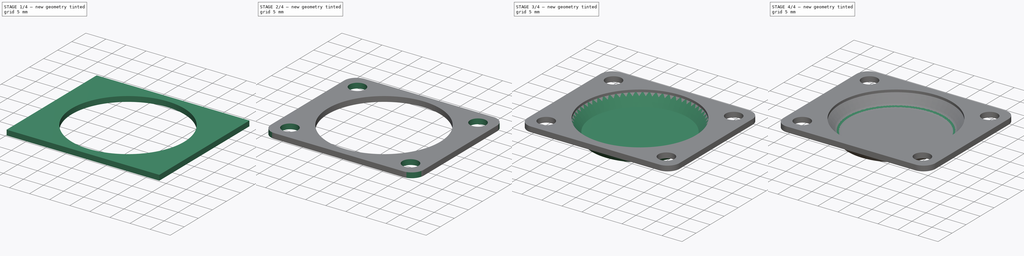
[diagram: build sequence overview — one tinted view per stage of 4, left to right]
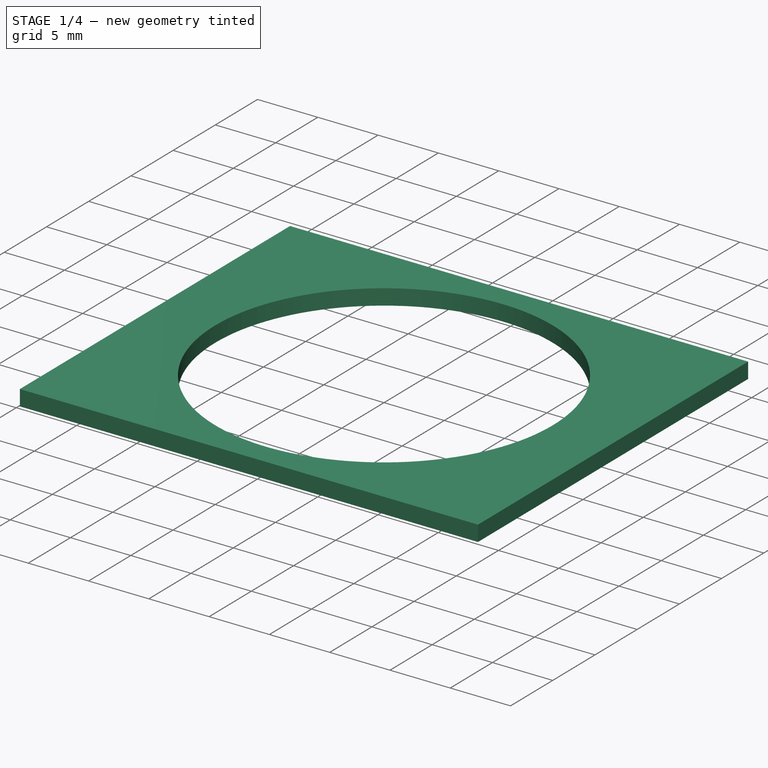
[diagram: stage 1 of 4 — iso view after this stage's code; geometry added in this stage tinted green]
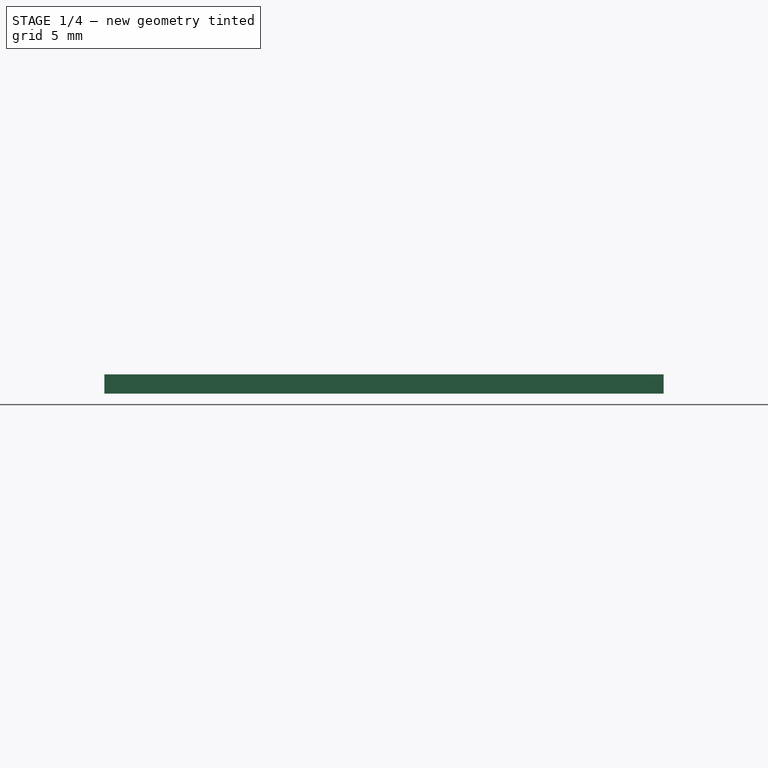
[diagram: stage 1 of 4 — front view after this stage's code; geometry added in this stage tinted green]
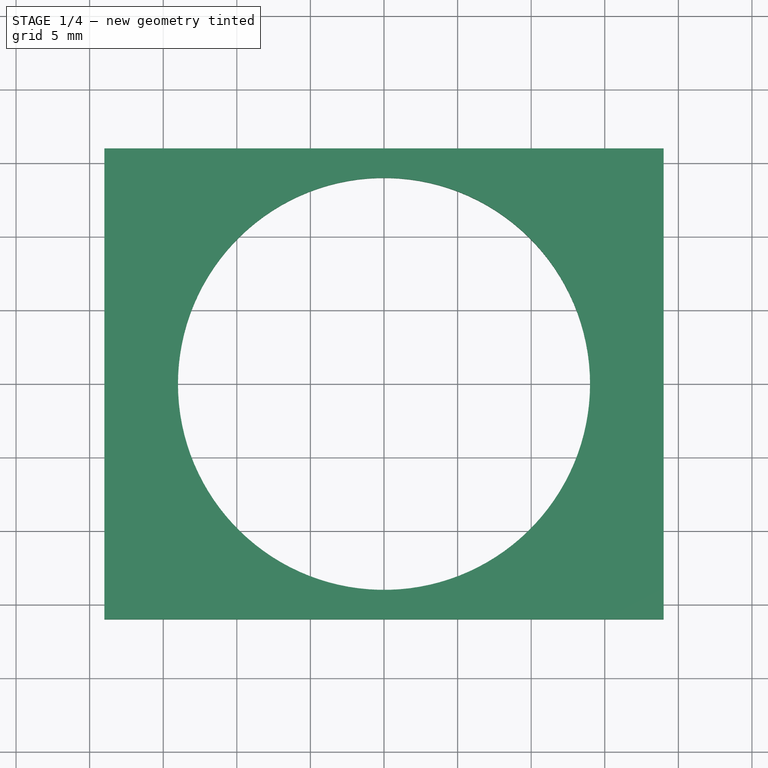
[diagram: stage 1 of 4 — top view after this stage's code; geometry added in this stage tinted green]
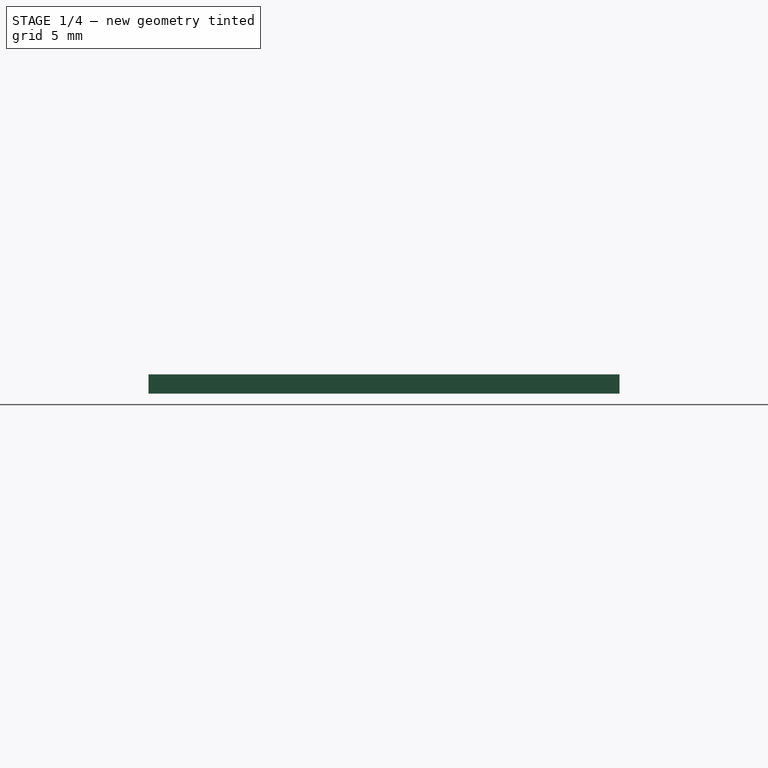
[diagram: stage 1 of 4 — right view after this stage's code; geometry added in this stage tinted green]
FCSTD DOCUMENT  (FreeCAD 0.16R6712 (Git))
Label: freeWheel
License: All rights reserved
LicenseURL: http://en.wikipedia.org/wiki/All_rights_reserved
objects: PartDesign::Fillet×4, Sketcher::SketchObject×3, PartDesign::Pocket×2, PartDesign::Revolution×1, Part::Box×1, Part::Cut×1
note: 15 computed .brp shape members not serialized (recipe doc carries the construction recipe); baked Part::Feature solids carry a one-line shape summary decoded from their .brp

FEATURE [Part::Box] Box  label="Cube"
  Height = 1.3
  Length = 38
  Placement = pos=(-19,-16,3) rot=(0,0,1;0rad)
  Width = 32
FEATURE [Sketcher::SketchObject] Sketch001
  Placement = pos=(-19,-16,4.3) rot=(0,0,1;0rad)
  Support = -> Box [Face6]
  sketch-geometry (1):
    g0: Circle CenterX=19 CenterY=16 CenterZ=0 NormalX=0 NormalY=0 NormalZ=1 Radius=14
  constraints (3):
    c: DistanceX(g-1,g0) = 19
    c: DistanceY(g-1,g0) = 16
    c: Radius(g0) = 14
FEATURE [PartDesign::Pocket] Pocket
  Length = 5
  Placement = pos=(-19,-16,3) rot=(0,0,1;0rad)
  Sketch = -> Sketch001
  Type = 1
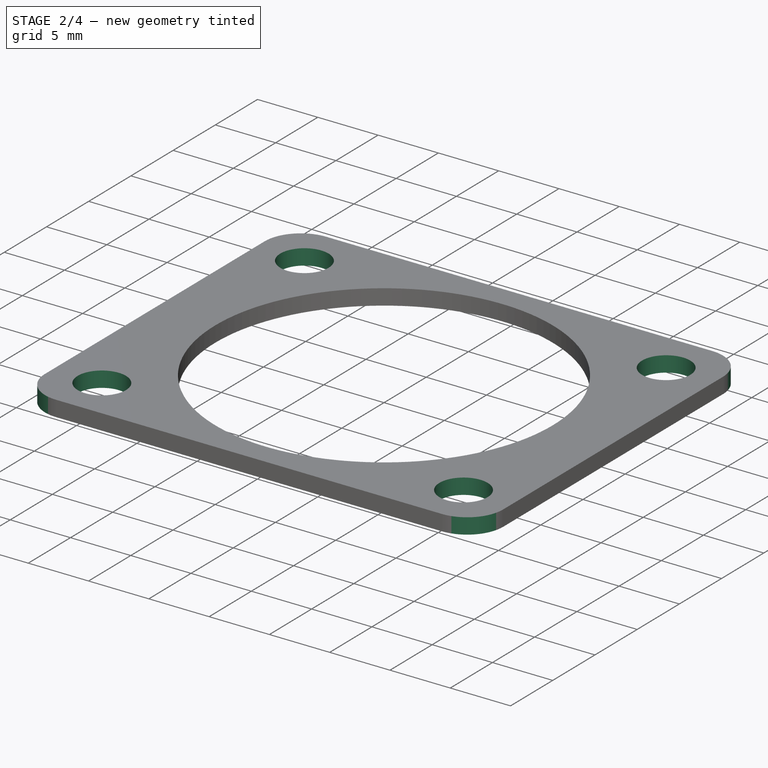
[diagram: stage 2 of 4 — iso view after this stage's code; geometry added in this stage tinted green]
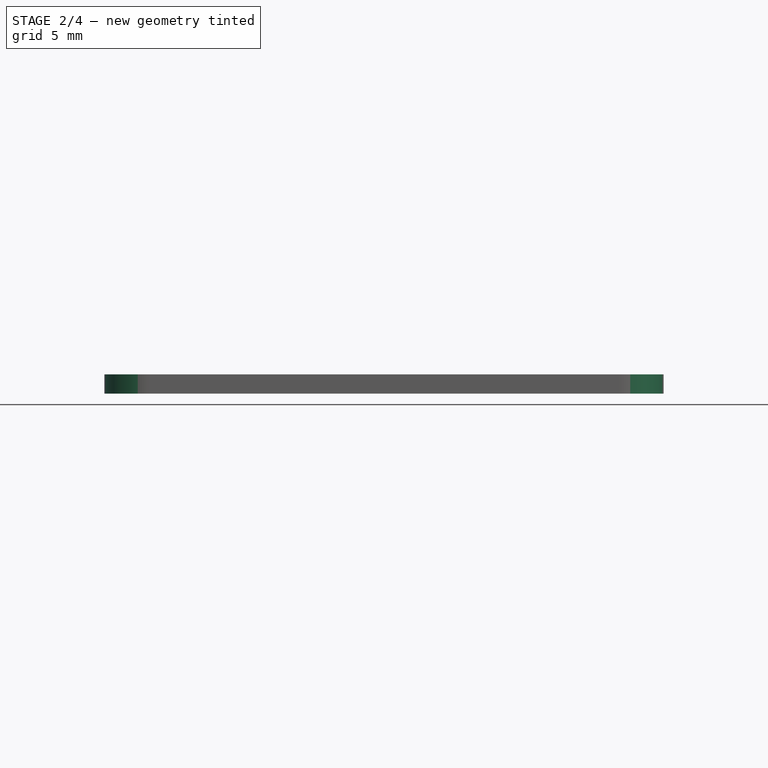
[diagram: stage 2 of 4 — front view after this stage's code; geometry added in this stage tinted green]
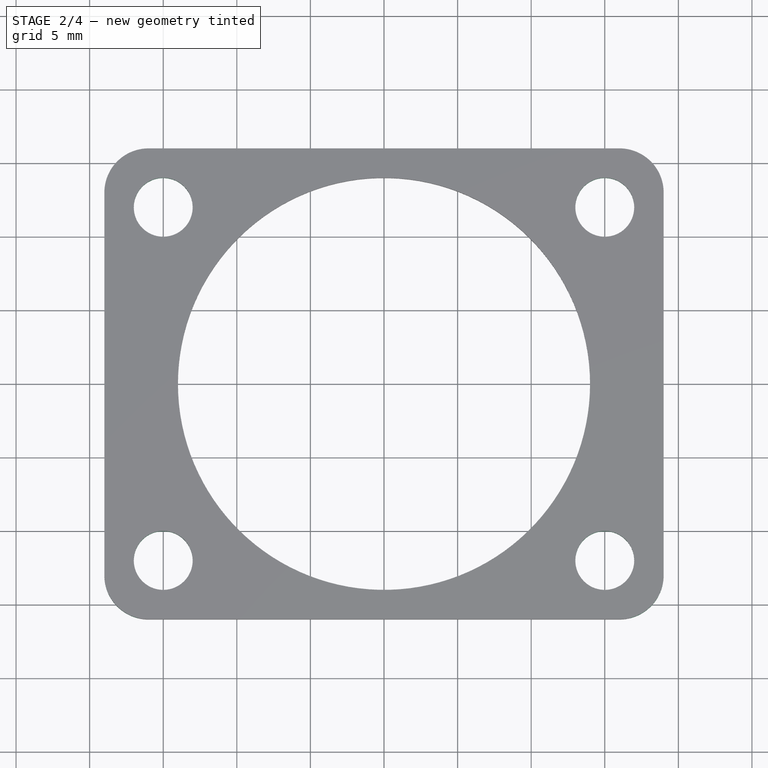
[diagram: stage 2 of 4 — top view after this stage's code; geometry added in this stage tinted green]
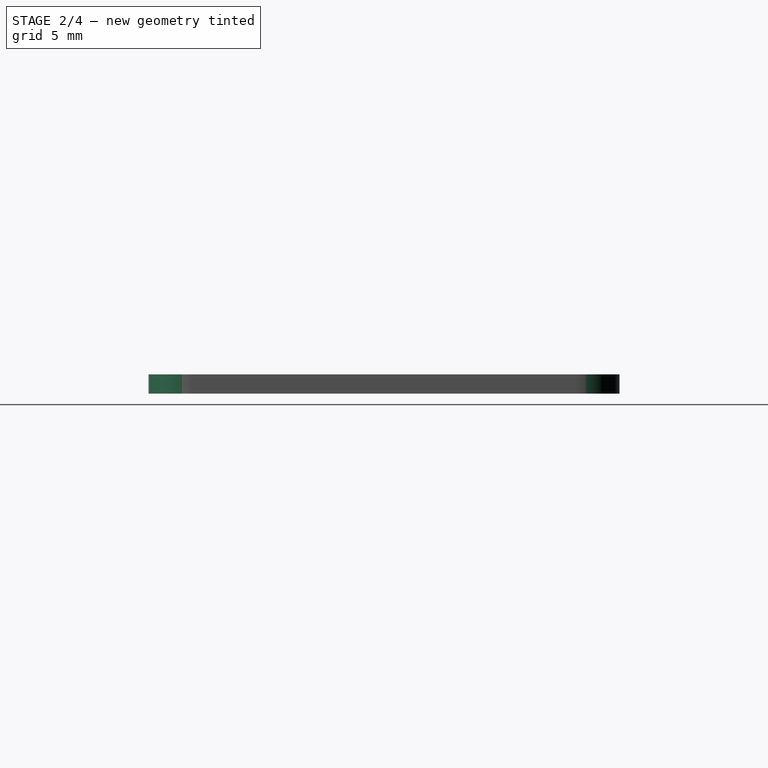
[diagram: stage 2 of 4 — right view after this stage's code; geometry added in this stage tinted green]
FEATURE [PartDesign::Fillet] Fillet003
  Base = -> Pocket [Edge1,Edge6,Edge12,Edge3]
  Placement = pos=(-19,-16,3) rot=(0,0,1;0rad)
  Radius = 3
FEATURE [Sketcher::SketchObject] Sketch002
  Placement = pos=(-19,-16,4.3) rot=(0,0,1;0rad)
  Support = -> Fillet003 [Face2]
  sketch-geometry (4):
    g0: Circle CenterX=4 CenterY=4 CenterZ=0 NormalX=0 NormalY=0 NormalZ=1 Radius=2
    g1: Circle CenterX=34 CenterY=4 CenterZ=0 NormalX=0 NormalY=0 NormalZ=1 Radius=2
    g2: Circle CenterX=34 CenterY=28 CenterZ=0 NormalX=0 NormalY=0 NormalZ=1 Radius=2
    g3: Circle CenterX=4 CenterY=28 CenterZ=0 NormalX=0 NormalY=0 NormalZ=1 Radius=2
  constraints (12):
    c: Radius(g0) = 2
    c: DistanceY(g-1,g0) = 4
    c: DistanceX(g-1,g0) = 4
    c: Equal(g0,g1)
    c: Equal(g1,g2)
    c: Equal(g2,g3)
    c: DistanceX(g0,g1) = 30
    c: DistanceX(g3,g2) = 30
    c: DistanceY(g1,g2) = 24
    c: DistanceY(g0,g3) = 24
    c: DistanceX(g-1,g3) = 4
    c: DistanceY(g-1,g1) = 4
FEATURE [PartDesign::Pocket] Pocket001
  Length = 5
  Placement = pos=(-19,-16,3) rot=(0,0,1;0rad)
  Sketch = -> Sketch002
  Type = 1
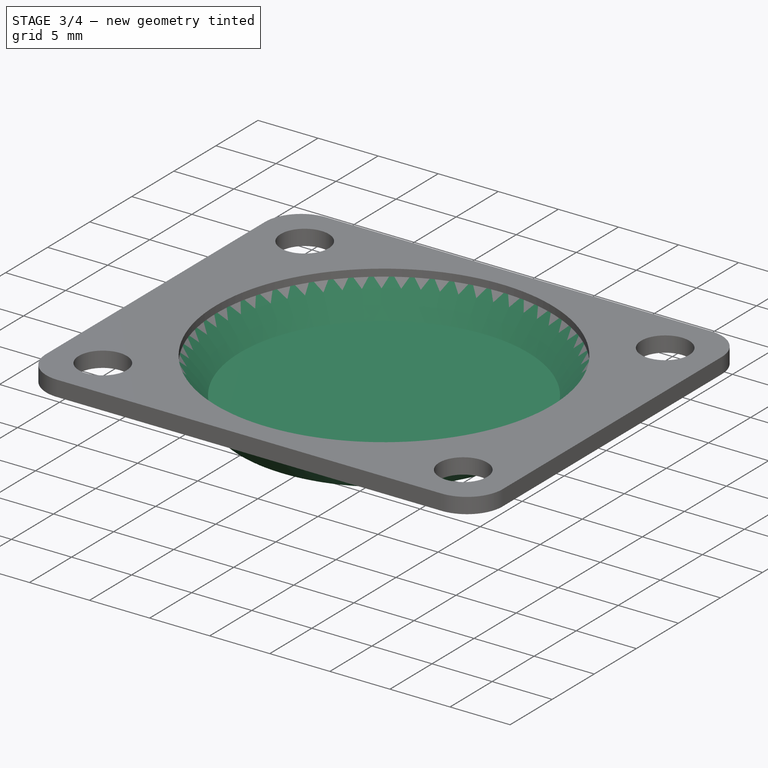
[diagram: stage 3 of 4 — iso view after this stage's code; geometry added in this stage tinted green]
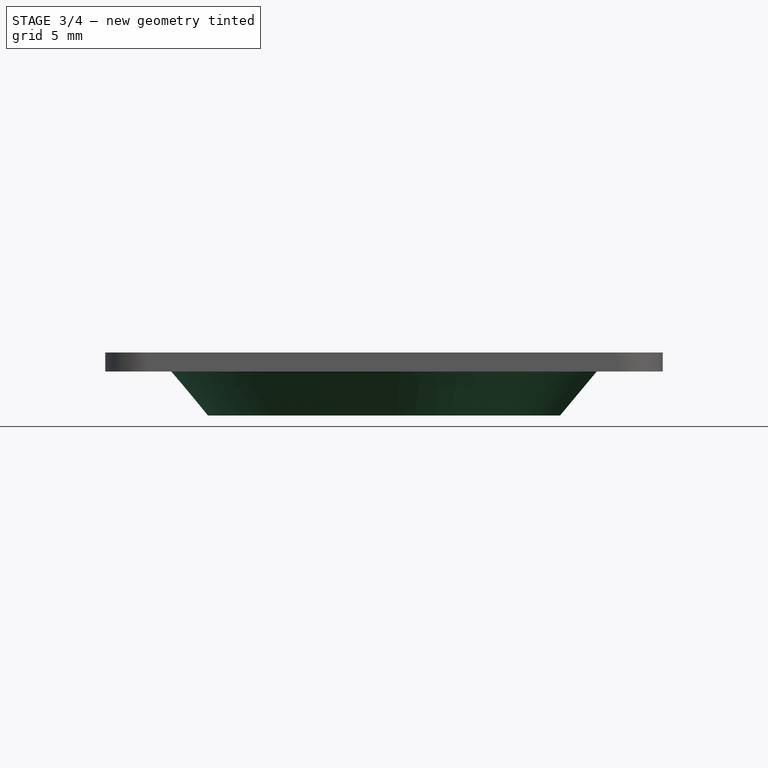
[diagram: stage 3 of 4 — front view after this stage's code; geometry added in this stage tinted green]
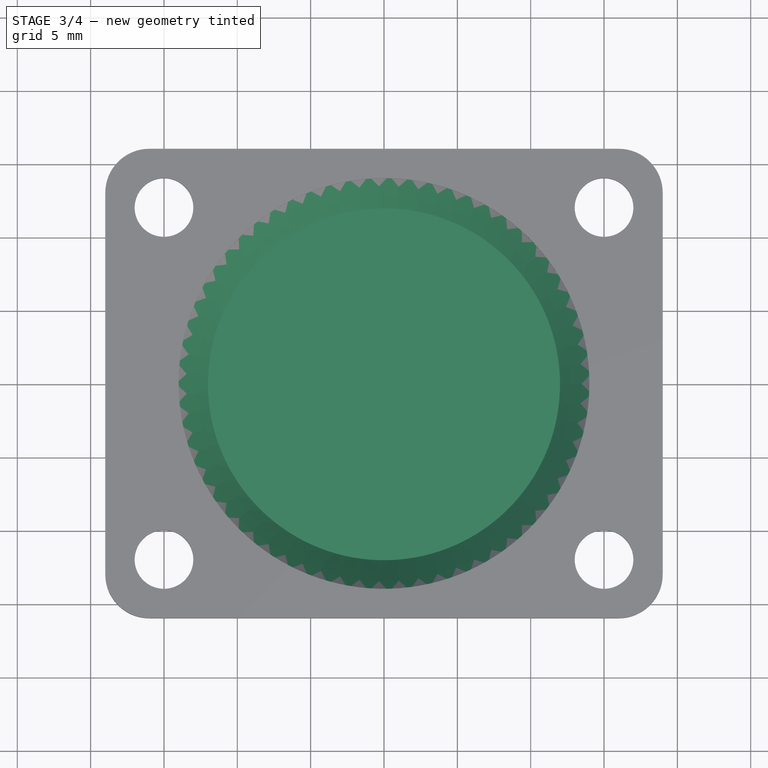
[diagram: stage 3 of 4 — top view after this stage's code; geometry added in this stage tinted green]
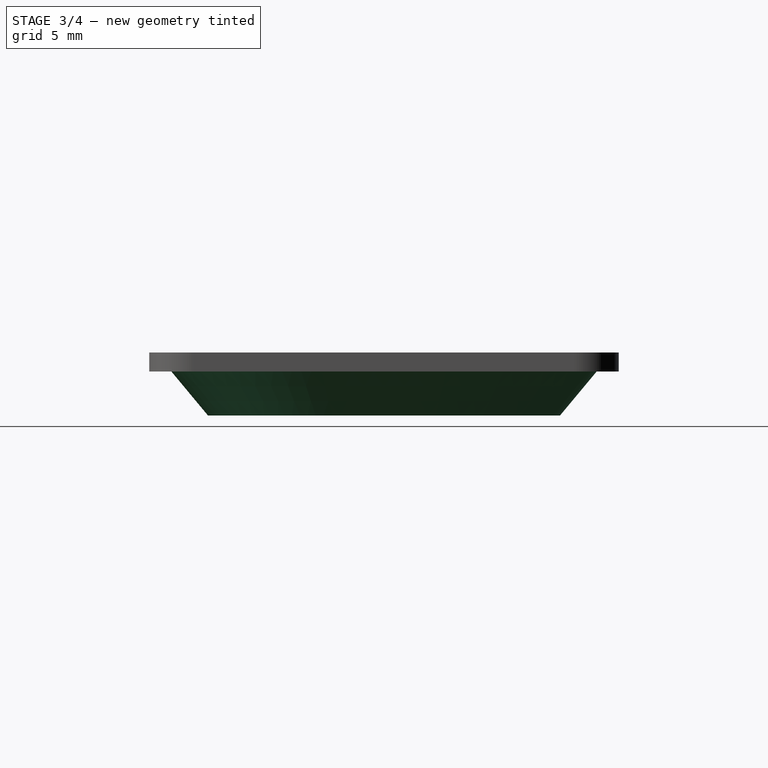
[diagram: stage 3 of 4 — right view after this stage's code; geometry added in this stage tinted green]
FEATURE [Sketcher::SketchObject] Sketch
  Placement = pos=(0,0,0) rot=(-1,0,0;4.71239rad)
  sketch-geometry (8):
    g0: LineSegment StartX=0 StartY=0 StartZ=0 EndX=12 EndY=0 EndZ=0
    g1: LineSegment StartX=12 StartY=0 StartZ=0 EndX=14.5 EndY=3 EndZ=0
    g2: LineSegment StartX=14.5 StartY=3 StartZ=0 EndX=16 EndY=3 EndZ=0
    g3: LineSegment StartX=0 StartY=1.3 StartZ=0 EndX=12 EndY=1.3 EndZ=0
    g4: LineSegment StartX=12 StartY=1.3 StartZ=0 EndX=14.5 EndY=4.3 EndZ=0
    g5: LineSegment StartX=14.5 StartY=4.3 StartZ=0 EndX=16 EndY=4.3 EndZ=0
    g6: LineSegment StartX=16 StartY=4.3 StartZ=0 EndX=16 EndY=3 EndZ=0
    g7: LineSegment StartX=0 StartY=1.3 StartZ=0 EndX=0 EndY=0 EndZ=0
  constraints (25):
    c: Coincident(g0,g-1)
    c: Horizontal(g0)
    c: DistanceX(g0,g0) = 12
    c: Coincident(g1,g0)
    c: Coincident(g2,g1)
    c: Horizontal(g2)
    c: DistanceX(g-1,g2) = 16
    c: DistanceX(g2,g2) = 1.5
    c: DistanceY(g-1,g2) = 3
    c: Horizontal(g3)
    c: Equal(g0,g3) = 12
    c: Coincident(g4,g3)
    c: Coincident(g5,g4)
    c: Horizontal(g5)
    c: Equal(g2,g5) = 1.5
    c: DistanceX(g-1,g3) = 0
    c: DistanceY(g3) = 1.3
    c: DistanceX(g1,g4) = 0
    c: DistanceY(g2,g5) = 1.3
    c: Coincident(g6,g5)
    c: Vertical(g6)
    c: Coincident(g2,g6)
    c: Coincident(g7,g3)
    c: PointOnObject(g7,g-2)
    c: Coincident(g-1,g7)
FEATURE [PartDesign::Revolution] Revolution
  Angle = 360
  Axis = (0,0,1)
  Base = (0,0,0)
  Placement = pos=(0,0,0) rot=(-1,0,0;4.71239rad)
  ReferenceAxis = -> Sketch [V_Axis]
  Reversed = true
  Sketch = -> Sketch
FEATURE [PartDesign::Fillet] Fillet
  Base = -> Revolution [Edge7]
  Placement = pos=(0,0,0) rot=(-1,0,0;4.71239rad)
  Radius = 1
FEATURE [Part::Cut] Cut
  Base = -> Revolution
  Tool = -> Box
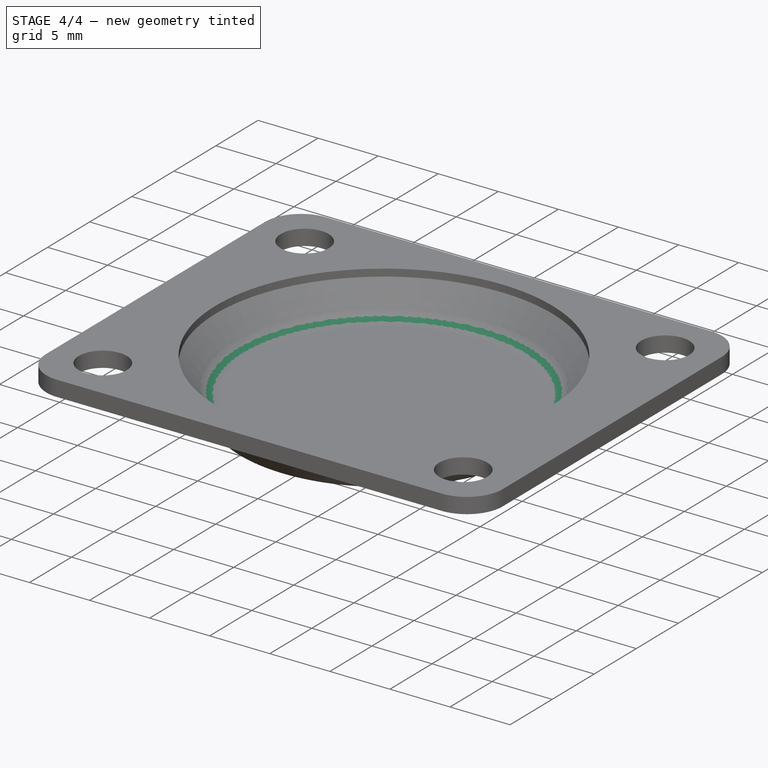
[diagram: stage 4 of 4 — iso view after this stage's code; geometry added in this stage tinted green]
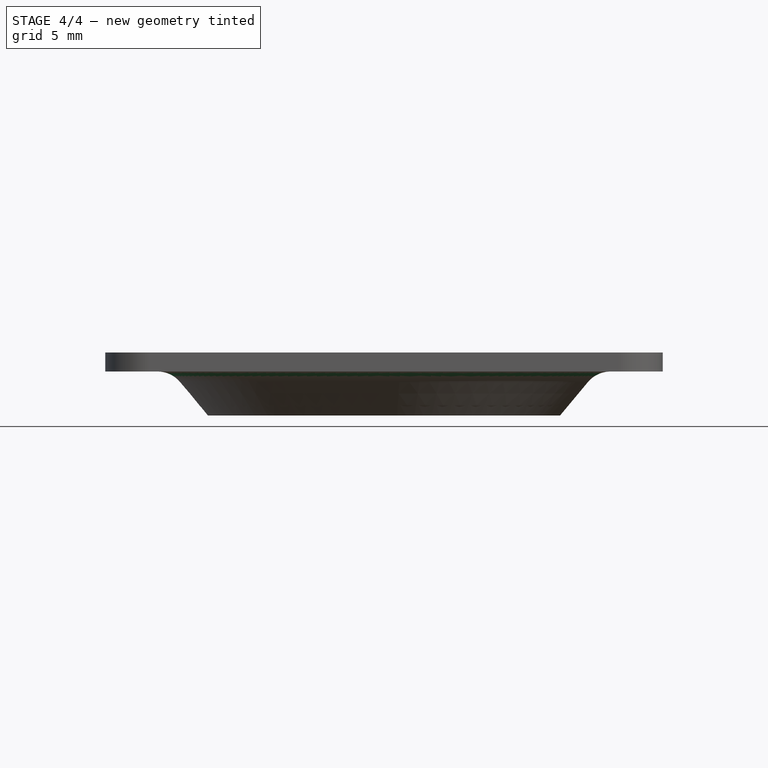
[diagram: stage 4 of 4 — front view after this stage's code; geometry added in this stage tinted green]
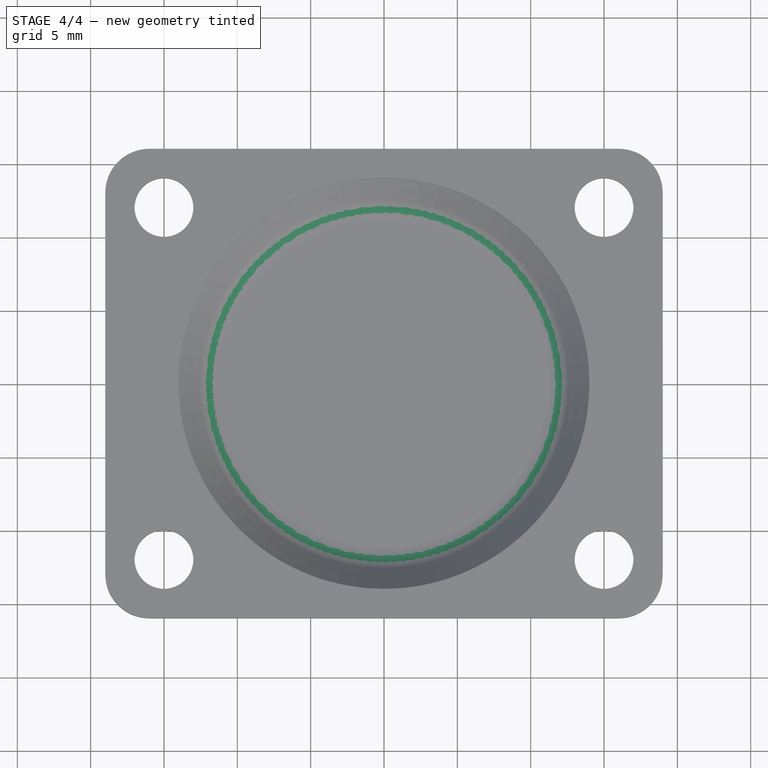
[diagram: stage 4 of 4 — top view after this stage's code; geometry added in this stage tinted green]
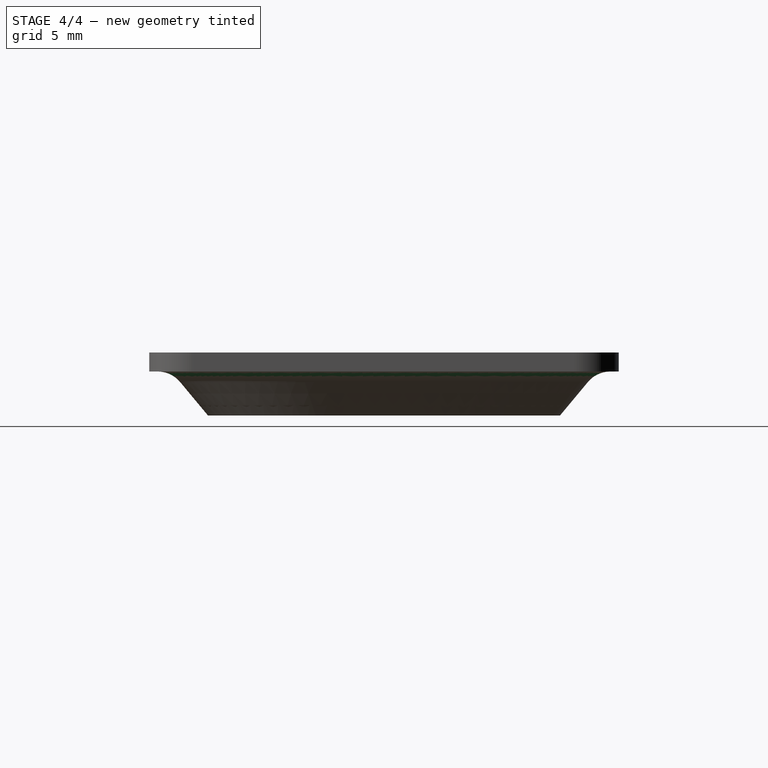
[diagram: stage 4 of 4 — right view after this stage's code; geometry added in this stage tinted green]
FEATURE [PartDesign::Fillet] Fillet001
  Base = -> Fillet [Edge8]
  Placement = pos=(0,0,0) rot=(-1,0,0;4.71239rad)
  Radius = 2
FEATURE [PartDesign::Fillet] Fillet002
  Base = -> Fillet001 [Edge12,Edge11]
  Placement = pos=(0,0,0) rot=(-1,0,0;4.71239rad)
  Radius = 2
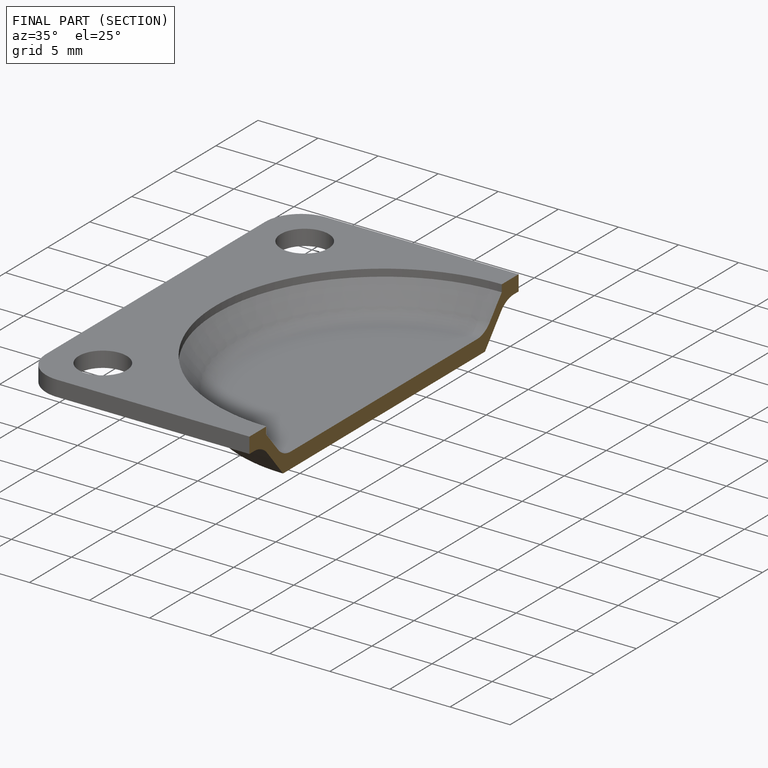
[diagram: finished part — half-section view (interior)]
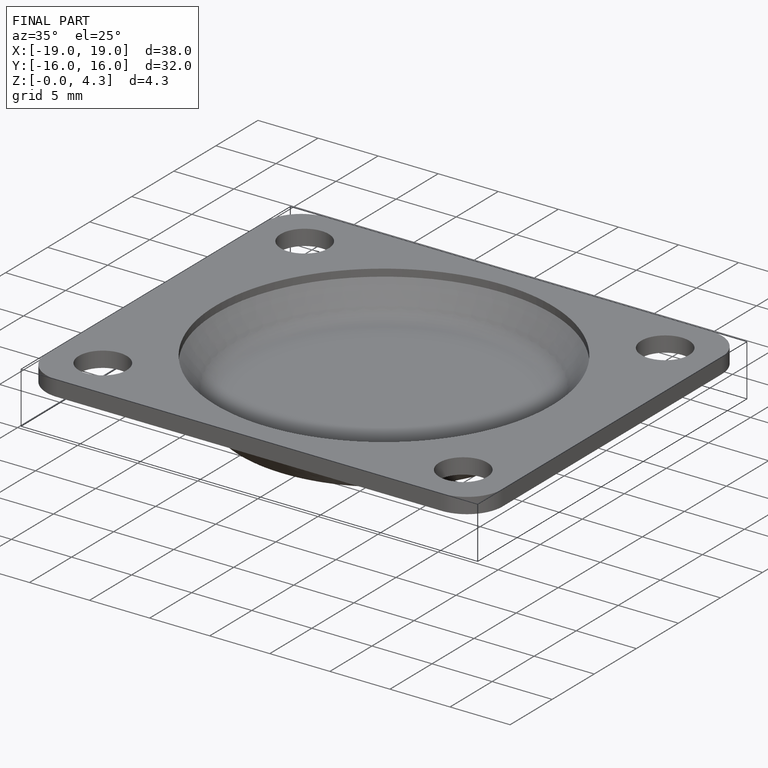
[diagram: finished part — iso view with bounding-box wireframe]
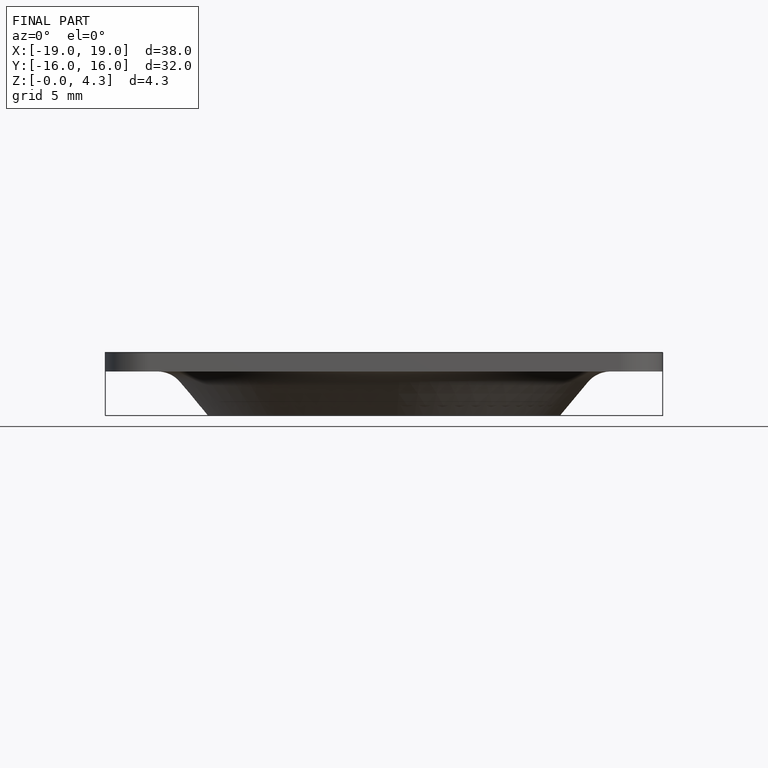
[diagram: finished part — front view with bounding-box wireframe]
